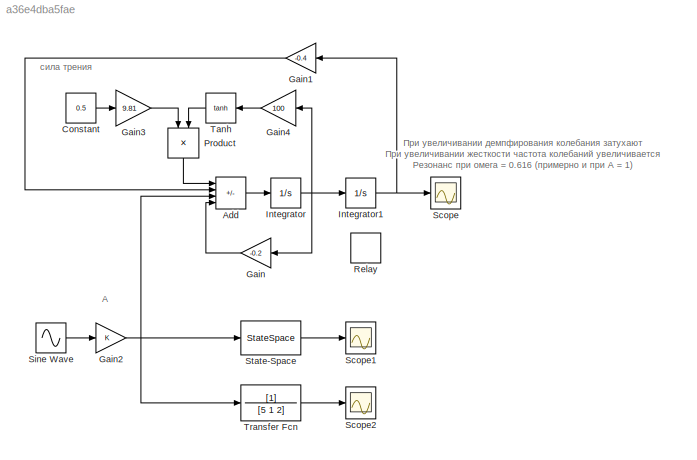
MODEL slx_a36e4dba5fae
KIND model
CONFIG AbsTol = auto
CONFIG EnableMultiTasking = off
CONFIG FixedStep = auto
CONFIG MaxStep = auto
CONFIG MinStep = auto
CONFIG RelTol = 1e-3
CONFIG SampleTimeConstraint = Unconstrained
CONFIG SolverName = VariableStepAuto
CONFIG StartTime = 0.0
CONFIG StopTime = 100.0
BLOCK [Sum] Add
  IconShape = rectangular
  Inputs = -+++
BLOCK [Constant] Constant
  Value = 0.5
BLOCK [Gain] Gain
  Gain = -0.2
  NameLocation = top
BLOCK [Gain] Gain1
  Gain = -0.4
  NameLocation = top
BLOCK [Gain] Gain2
BLOCK [Gain] Gain3
  Gain = 9.81
BLOCK [Gain] Gain4
  Gain = 100
  NameLocation = top
BLOCK [Integrator] Integrator
BLOCK [Integrator] Integrator1
BLOCK [Product] Product
  NameLocation = left
BLOCK [Relay] Relay
BLOCK [Scope] Scope
  Floating = off
  NumInputPorts = 1
  ScopeSpecificationString = Simulink.scopes.TimeScopeBlockCfg('CurrentConfiguration', extmgr.ConfigurationSet(extmgr.Configuration('Core','General UI',true),extmgr.Configuration('Core','Source UI',true),extmgr.Configuration('Sources','WiredSimulink',true),extmgr.Configuration('Visuals','Time Domain',true,'SerializedDisplays',{struct('MinYLimReal','-0.0375','MaxYLimReal','0.05248','YLabelReal','','MinYLimMag','0.00000','MaxYL...<+1418ch>
BLOCK [Scope] Scope1
  Floating = off
  NumInputPorts = 1
  ScopeSpecificationString = Simulink.scopes.TimeScopeBlockCfg('CurrentConfiguration', extmgr.ConfigurationSet(extmgr.Configuration('Core','General UI',true),extmgr.Configuration('Core','Source UI',true),extmgr.Configuration('Sources','WiredSimulink',true,'DataLoggingVariableName','ScopeData1'),extmgr.Configuration('Visuals','Time Domain',true,'SerializedDisplays',{struct('MinYLimReal','-3.38777','MaxYLimReal','2.87043','YLab...<+1459ch>
BLOCK [Scope] Scope2
  Floating = off
  NumInputPorts = 1
  ScopeSpecificationString = Simulink.scopes.TimeScopeBlockCfg('CurrentConfiguration', extmgr.ConfigurationSet(extmgr.Configuration('Core','General UI',true),extmgr.Configuration('Core','Source UI',true),extmgr.Configuration('Sources','WiredSimulink',true,'DataLoggingVariableName','ScopeData2'),extmgr.Configuration('Visuals','Time Domain',true,'SerializedDisplays',{struct('MinYLimReal','-3.38777','MaxYLimReal','2.87043','YLab...<+1460ch>
BLOCK [Sin] Sine Wave
  Amplitude = 5
  SampleTime = 0
BLOCK [StateSpace] State-Space
  A = [0 1; -0.4 -0.2]
  B = [0; 0.2]
  C = [1, 0]
  D = 0
  InitialCondition = 0
BLOCK [Trigonometry] Tanh
  NameLocation = top
  Operator = tanh
BLOCK [TransferFcn] Transfer Fcn
  Denominator = [5 1 2]
ANNOTATION (root): А
ANNOTATION (root): При увеличивании демпфирования колебания затухают При увеличивании жесткости частота колебаний увеличивается Резонанс при омега = 0.616 (примерно и при A = 1)
ANNOTATION (root): сила трения
LINE Add:1 -> Integrator:1
LINE Constant:1 -> Gain3:1
LINE Gain1:1 -> Add:2
NET Gain2:1 -> Add:3, State-Space:1, Transfer Fcn:1
LINE Gain3:1 -> Product:1
LINE Gain4:1 -> Tanh:1
LINE Gain:1 -> Add:4
NET Integrator1:1 -> Gain1:1, Scope:1
NET Integrator:1 -> Gain4:1, Gain:1, Integrator1:1
LINE Product:1 -> Add:1
LINE Sine Wave:1 -> Gain2:1
LINE State-Space:1 -> Scope1:1
LINE Tanh:1 -> Product:2
LINE Transfer Fcn:1 -> Scope2:1
note: NET lines group one-source signal fan-out (src -> all destinations, sorted); 1:1 wires keep LINE
